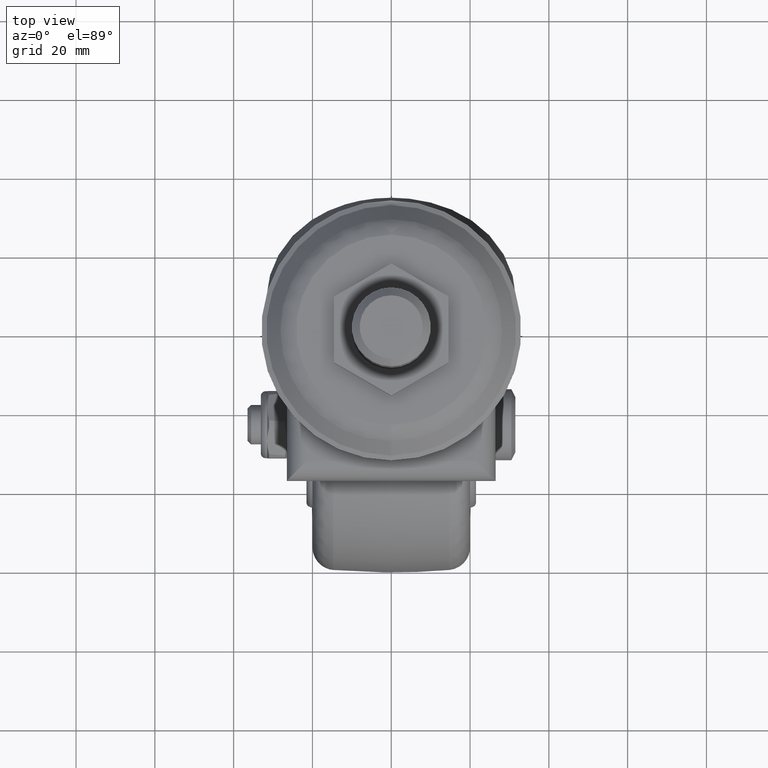
[diagram: clean part render]
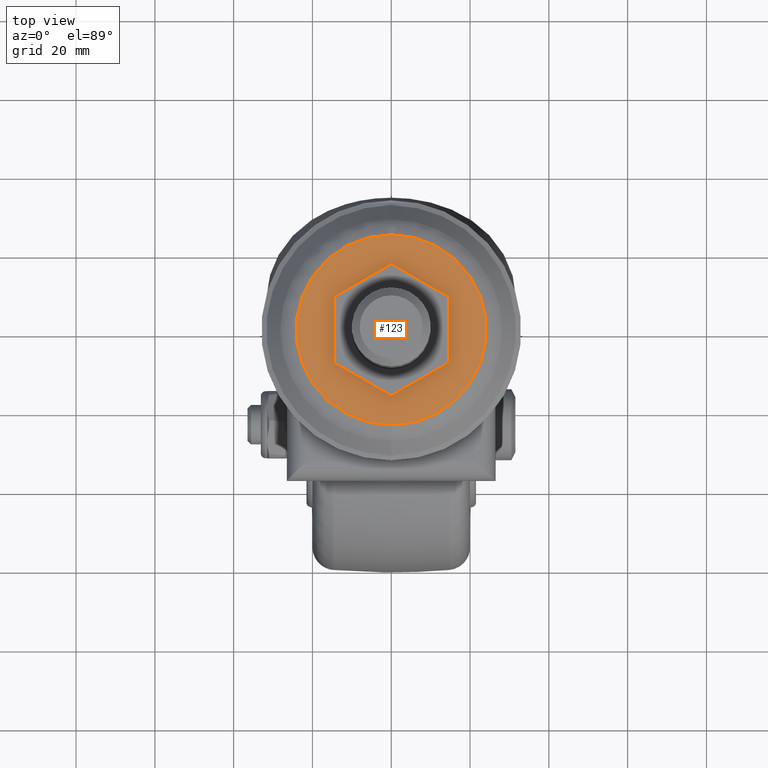
[diagram: same view with one face highlighted and labeled with its STEP entity id]
A machine part, top view. The second image highlights one B-rep face of the part: STEP entity #123.
In plain terms, the highlighted planar face has unit normal (0, 0, 1).
Its self-contained STEP definition (entity closure, byte-faithful):
#123=ADVANCED_FACE('',(#394,#395),#393,.T.);
#393=PLANE('',#2037);
#394=FACE_OUTER_BOUND('',#2038,.T.);
#395=FACE_BOUND('',#2039,.T.);
#2034=CARTESIAN_POINT('',(-5.01744344580E+01,0.00000000000E+00,-5.55224278782E+01));
#2035=DIRECTION('',(0.00000000000E+00,1.00000000000E+00,0.00000000000E+00));
#2036=DIRECTION('',(0.00000000000E+00,0.00000000000E+00,1.00000000000E+00));
#2037=AXIS2_PLACEMENT_3D('',#2034,#2035,#2036);
#2038=EDGE_LOOP('',(#3697,#3698));
#2039=EDGE_LOOP('',(#3699,#3700,#3701,#3702,#3703,#3704));
#3697=ORIENTED_EDGE('',*,*,#4422,.T.);
#3698=ORIENTED_EDGE('',*,*,#4423,.T.);
#3699=ORIENTED_EDGE('',*,*,#4424,.F.);
#3700=ORIENTED_EDGE('',*,*,#4425,.F.);
#3701=ORIENTED_EDGE('',*,*,#4426,.F.);
#3702=ORIENTED_EDGE('',*,*,#4427,.F.);
#3703=ORIENTED_EDGE('',*,*,#4428,.F.);
#3704=ORIENTED_EDGE('',*,*,#4429,.F.);
#4422=EDGE_CURVE('',#5198,#5199,#5200,.T.);
#4423=EDGE_CURVE('',#5199,#5198,#5206,.T.);
#4424=EDGE_CURVE('',#5212,#5213,#5214,.T.);
#4425=EDGE_CURVE('',#5220,#5212,#5221,.T.);
#4426=EDGE_CURVE('',#5227,#5220,#5228,.T.);
#4427=EDGE_CURVE('',#5234,#5227,#5235,.T.);
#4428=EDGE_CURVE('',#5241,#5234,#5242,.T.);
#4429=EDGE_CURVE('',#5213,#5241,#5248,.T.);
#5198=VERTEX_POINT('',#7700);
#5199=VERTEX_POINT('',#7701);
#5200=CIRCLE('',#7705,2.41401860340E+01);
#5206=CIRCLE('',#7709,2.41401860340E+01);
#5212=VERTEX_POINT('',#7710);
#5213=VERTEX_POINT('',#7711);
#5214=LINE('',#7712,#7713);
#5220=VERTEX_POINT('',#7715);
#5221=LINE('',#7716,#7717);
#5227=VERTEX_POINT('',#7719);
#5228=LINE('',#7720,#7721);
#5234=VERTEX_POINT('',#7723);
#5235=LINE('',#7724,#7725);
#5241=VERTEX_POINT('',#7727);
#5242=LINE('',#7728,#7729);
#5248=LINE('',#7731,#7732);
#7700=CARTESIAN_POINT('',(0.00000000000E+00,-4.84131147704E-06,2.41401860340E+01));
#7701=CARTESIAN_POINT('',(-1.18423789293E-15,-4.84131147704E-06,-2.41401860340E+01));
#7702=CARTESIAN_POINT('',(0.00000000000E+00,-4.84131147704E-06,7.10542735760E-14));
#7703=DIRECTION('',(0.00000000000E+00,1.00000000000E+00,-0.00000000000E+00));
#7704=DIRECTION('',(-1.22460635382E-16,0.00000000000E+00,1.00000000000E+00));
#7705=AXIS2_PLACEMENT_3D('',#7702,#7703,#7704);
#7706=CARTESIAN_POINT('',(0.00000000000E+00,-4.84131147704E-06,7.10542735760E-14));
#7707=DIRECTION('',(0.00000000000E+00,1.00000000000E+00,-0.00000000000E+00));
#7708=DIRECTION('',(-1.22460635382E-16,0.00000000000E+00,1.00000000000E+00));
#7709=AXIS2_PLACEMENT_3D('',#7706,#7707,#7708);
#7710=CARTESIAN_POINT('',(-1.45000040000E+01,0.00000000000E+00,8.37157920000E+00));
#7711=CARTESIAN_POINT('',(1.13624387676E-13,0.00000000000E+00,1.67431580000E+01));
#7712=CARTESIAN_POINT('',(-1.45000043897E+01,-3.55618312575E-14,8.37157987500E+00));
#7713=VECTOR('',#7714,1.67431612190E+01);
#7714=DIRECTION('',(8.66025489456E-01,0.00000000000E+00,4.99999851612E-01));
#7715=CARTESIAN_POINT('',(-1.45000040000E+01,0.00000000000E+00,-8.37158010000E+00));
#7716=CARTESIAN_POINT('',(-1.45000040000E+01,-3.55618312575E-14,-8.37158010000E+00));
#7717=VECTOR('',#7718,1.67431593000E+01);
#7718=DIRECTION('',(0.00000000000E+00,0.00000000000E+00,1.00000000000E+00));
#7719=CARTESIAN_POINT('',(3.46944695195E-15,0.00000000000E+00,-1.67431580000E+01));
#7720=CARTESIAN_POINT('',(4.44089209850E-15,-3.55618312575E-14,-1.67431580000E+01));
#7721=VECTOR('',#7722,1.67431607690E+01);
#7722=DIRECTION('',(-8.66025489456E-01,0.00000000000E+00,4.99999851612E-01));
#7723=CARTESIAN_POINT('',(1.44999960000E+01,0.00000000000E+00,-8.37158050940E+00));
#7724=CARTESIAN_POINT('',(1.44999960000E+01,-3.55618312575E-14,-8.37158050940E+00));
#7725=VECTOR('',#7726,1.67431536361E+01);
#7726=DIRECTION('',(-8.66025432317E-01,0.00000000000E+00,-4.99999950581E-01));
#7727=CARTESIAN_POINT('',(1.44999960000E+01,0.00000000000E+00,8.37158020000E+00));
#7728=CARTESIAN_POINT('',(1.44999960000E+01,-3.55618312575E-14,8.37158020000E+00));
#7729=VECTOR('',#7730,1.67431607094E+01);
#7730=DIRECTION('',(0.00000000000E+00,0.00000000000E+00,-1.00000000000E+00));
#7731=CARTESIAN_POINT('',(1.11910480882E-13,-3.55618312575E-14,1.67431580000E+01));
#7732=VECTOR('',#7733,1.67431537908E+01);
#7733=DIRECTION('',(8.66025432317E-01,0.00000000000E+00,-4.99999950581E-01));